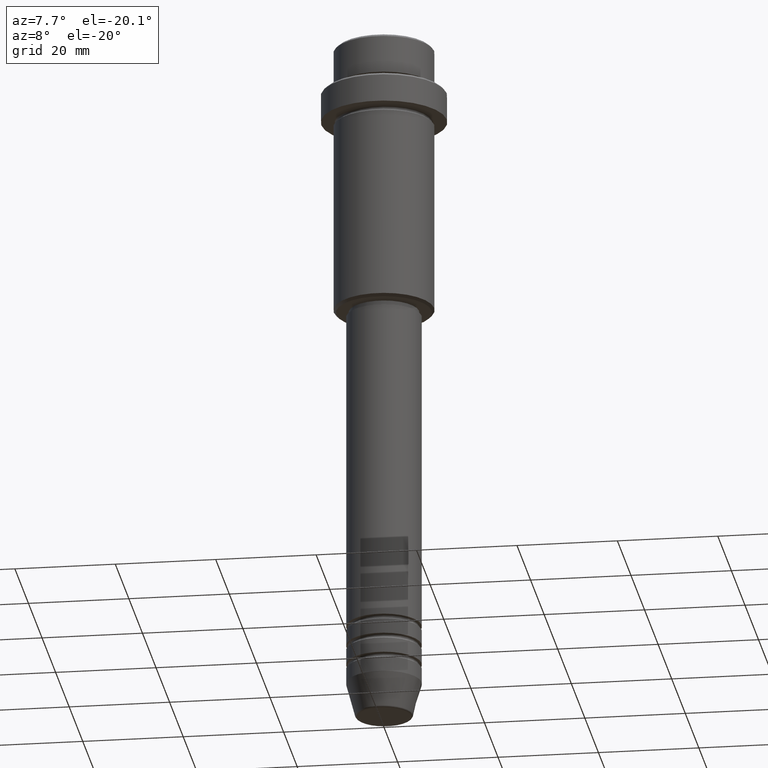
[diagram: clean part render]
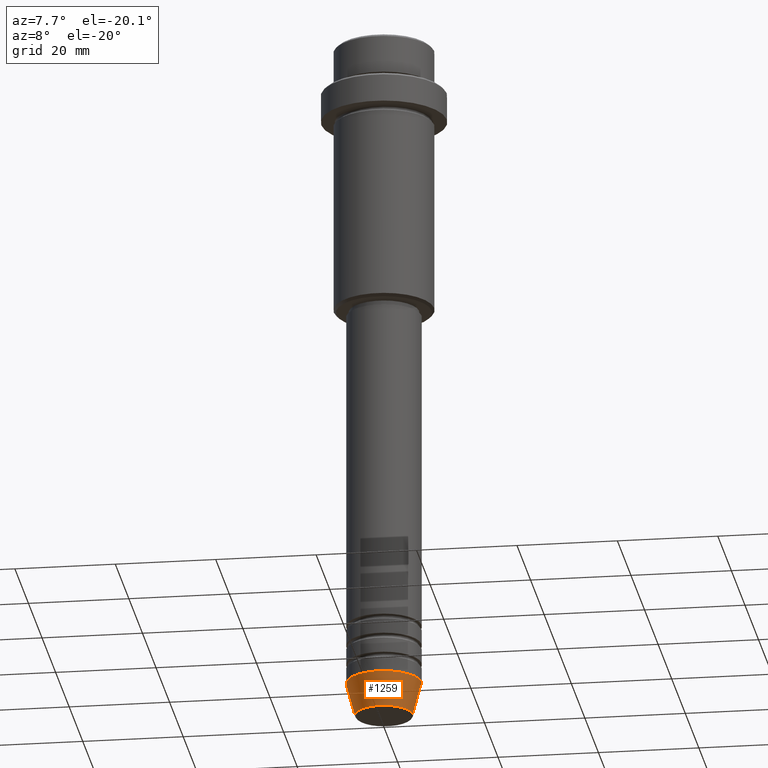
[diagram: same view with one face highlighted and labeled with its STEP entity id]
A machine part, auxiliary view. The second image highlights one B-rep face of the part: STEP entity #1259.
In plain terms, the highlighted conical surface has half-angle 15 deg.
Its self-contained STEP definition (entity closure, byte-faithful):
#55 = FACE_OUTER_BOUND ( 'NONE', #1371, .T. ) ;
#158 = LINE ( 'NONE', #365, #393 ) ;
#230 = EDGE_CURVE ( 'NONE', #1199, #760, #1119, .T. ) ;
#265 = EDGE_CURVE ( 'NONE', #1060, #1199, #158, .T. ) ;
#328 = AXIS2_PLACEMENT_3D ( 'NONE', #371, #1350, #476 ) ;
#365 = CARTESIAN_POINT ( 'NONE',  ( -7.500000000000000000, 9.184850993605147944E-16, -133.0000000000000000 ) ) ;
#371 = CARTESIAN_POINT ( 'NONE',  ( 0.000000000000000000, 0.000000000000000000, -133.0000000000000000 ) ) ;
#383 = VERTEX_POINT ( 'NONE', #394 ) ;
#393 = VECTOR ( 'NONE', #813, 1000.000000000000000 ) ;
#394 = CARTESIAN_POINT ( 'NONE',  ( 5.723655072137191269, 0.000000000000000000, -139.6294095225512706 ) ) ;
#422 = DIRECTION ( 'NONE',  ( 1.000000000000000000, 0.000000000000000000, 0.000000000000000000 ) ) ;
#427 = AXIS2_PLACEMENT_3D ( 'NONE', #1070, #525, #422 ) ;
#431 = ORIENTED_EDGE ( 'NONE', *, *, #1340, .T. ) ;
#476 = DIRECTION ( 'NONE',  ( 1.000000000000000000, 0.000000000000000000, 0.000000000000000000 ) ) ;
#480 = CARTESIAN_POINT ( 'NONE',  ( 7.500000000000000000, 0.000000000000000000, -133.0000000000000000 ) ) ;
#499 = DIRECTION ( 'NONE',  ( -0.000000000000000000, -0.000000000000000000, 1.000000000000000000 ) ) ;
#525 = DIRECTION ( 'NONE',  ( -0.000000000000000000, -0.000000000000000000, 1.000000000000000000 ) ) ;
#604 = CARTESIAN_POINT ( 'NONE',  ( 7.500000000000000000, 0.000000000000000000, -133.0000000000000000 ) ) ;
#620 = CARTESIAN_POINT ( 'NONE',  ( 0.000000000000000000, 0.000000000000000000, -133.0000000000000000 ) ) ;
#626 = DIRECTION ( 'NONE',  ( 1.000000000000000000, 0.000000000000000000, 0.000000000000000000 ) ) ;
#656 = ORIENTED_EDGE ( 'NONE', *, *, #265, .F. ) ;
#680 = DIRECTION ( 'NONE',  ( 0.2588190451025213501, 0.000000000000000000, 0.9659258262890680902 ) ) ;
#760 = VERTEX_POINT ( 'NONE', #604 ) ;
#813 = DIRECTION ( 'NONE',  ( -0.2588190451025213501, 3.169619151431772337E-17, 0.9659258262890680902 ) ) ;
#841 = VECTOR ( 'NONE', #680, 1000.000000000000000 ) ;
#904 = CARTESIAN_POINT ( 'NONE',  ( -5.723655072137191269, 8.097153428560735915E-16, -139.6294095225512706 ) ) ;
#1056 = CARTESIAN_POINT ( 'NONE',  ( -7.500000000000000000, 9.184850993605147944E-16, -133.0000000000000000 ) ) ;
#1060 = VERTEX_POINT ( 'NONE', #904 ) ;
#1070 = CARTESIAN_POINT ( 'NONE',  ( 0.000000000000000000, 0.000000000000000000, -139.6294095225512706 ) ) ;
#1076 = ORIENTED_EDGE ( 'NONE', *, *, #230, .F. ) ;
#1098 = EDGE_CURVE ( 'NONE', #383, #760, #1218, .T. ) ;
#1119 = CIRCLE ( 'NONE', #328, 7.500000000000000000 ) ;
#1181 = CIRCLE ( 'NONE', #427, 5.723655072137191269 ) ;
#1199 = VERTEX_POINT ( 'NONE', #1056 ) ;
#1218 = LINE ( 'NONE', #480, #841 ) ;
#1233 = AXIS2_PLACEMENT_3D ( 'NONE', #620, #499, #626 ) ;
#1259 = ADVANCED_FACE ( 'NONE', ( #55 ), #1407, .T. ) ;
#1304 = ORIENTED_EDGE ( 'NONE', *, *, #1098, .T. ) ;
#1340 = EDGE_CURVE ( 'NONE', #1060, #383, #1181, .T. ) ;
#1350 = DIRECTION ( 'NONE',  ( -0.000000000000000000, -0.000000000000000000, 1.000000000000000000 ) ) ;
#1371 = EDGE_LOOP ( 'NONE', ( #656, #431, #1304, #1076 ) ) ;
#1407 = CONICAL_SURFACE ( 'NONE', #1233, 7.500000000000000000, 0.2617993877991500740 ) ;